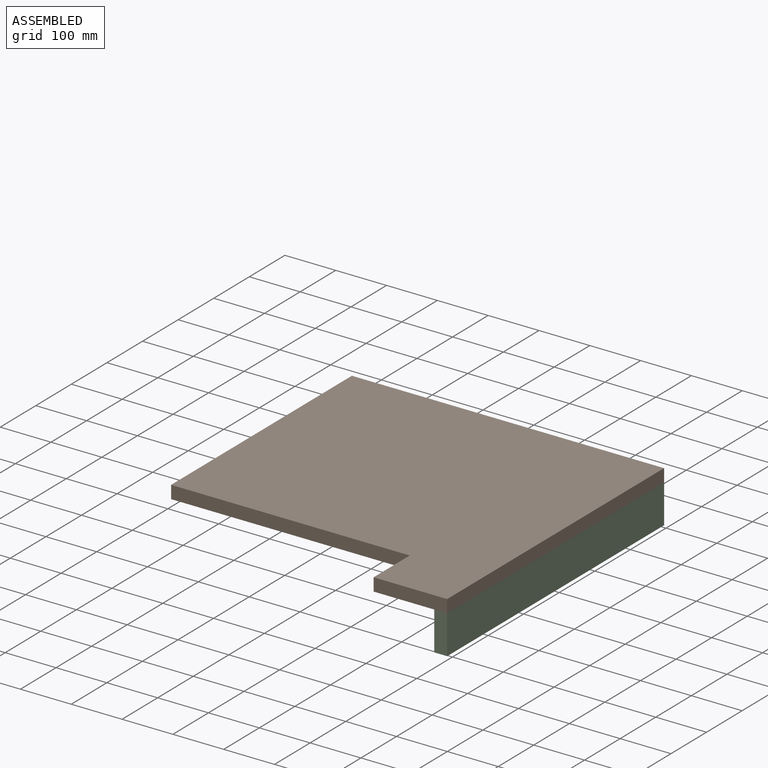
[diagram: assembled view]
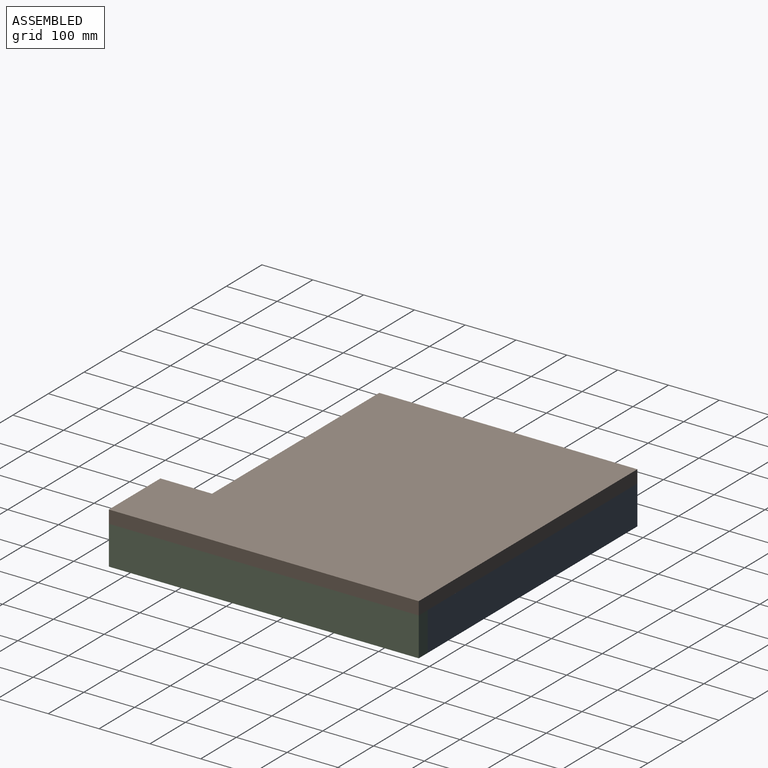
[diagram: assembled view, second angle]
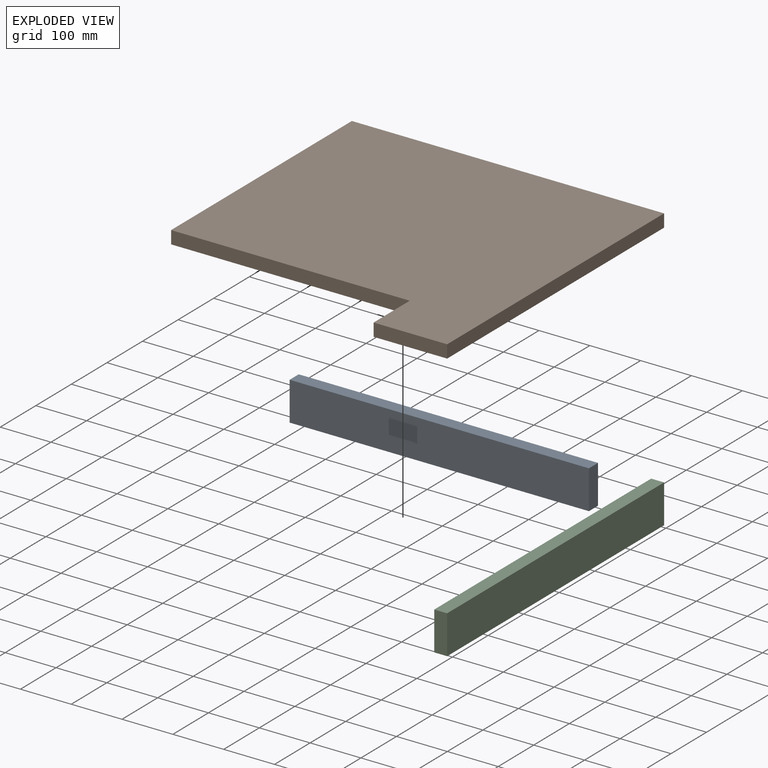
[diagram: exploded view]
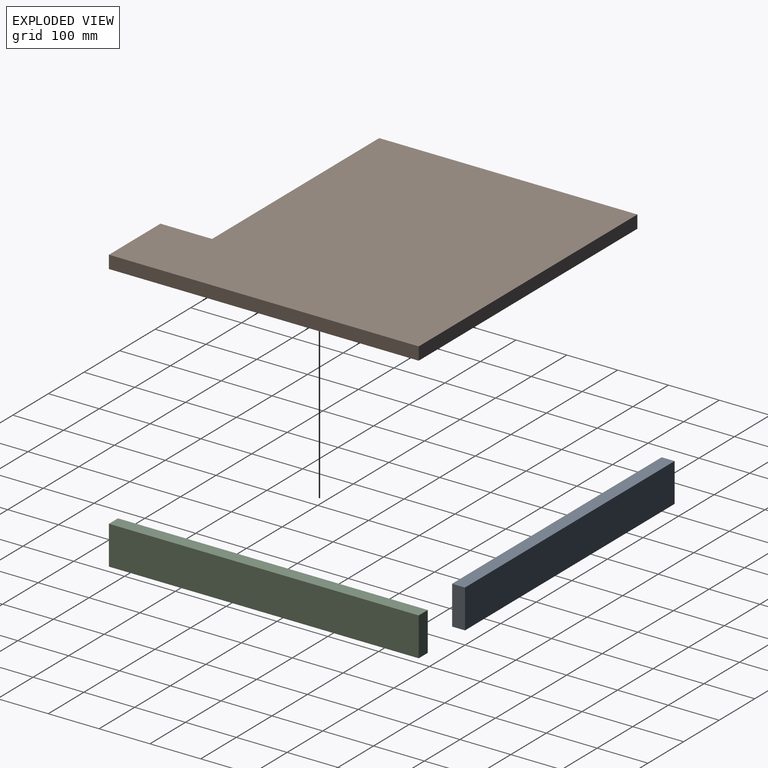
[diagram: exploded view, second angle]
ASSEMBLY  parts=3 mates=3
PART A: 6 faces, bbox 588.9x25.4x76.2 mm
  f0: plane 76.2x25.4mm, normal (-1,0,0), area 1935.5mm2, adj f1,f3,f4,f5
  f1: plane 588.95x25.4mm, normal (0,0,-1), area 14959.3mm2, adj f0,f2,f4,f5
  f2: plane 76.2x25.4mm, normal (1,0,0), area 1935.5mm2, adj f1,f3,f4,f5
  f3: plane 588.95x25.4mm, normal (0,0,1), area 14959.3mm2, adj f0,f2,f4,f5
  f4: plane 588.95x76.2mm, normal (0,-1,0), area 44878mm2, adj f0,f1,f2,f3
  f5: plane 588.95x76.2mm, normal (0,1,0), area 44878mm2, adj f0,f1,f2,f3
PART B: 8 faces, bbox 614.4x609.6x25.4 mm
  f0: plane 614.35x25.4mm, normal (0,1,0), area 15604.5mm2, adj f1,f5,f6,f7
  f1: plane 508x25.4mm, normal (-1,0,0), area 12903.2mm2, adj f0,f2,f6,f7
  f2: plane 469.61x25.4mm, normal (0,-1,0), area 11928.1mm2, adj f1,f3,f6,f7
  f3: plane 101.6x25.4mm, normal (-1,0,0), area 2580.6mm2, adj f2,f4,f6,f7
  f4: plane 144.74x25.4mm, normal (0,-1,0), area 3676.4mm2, adj f3,f5,f6,f7
  f5: plane 609.6x25.4mm, normal (1,0,0), area 15483.8mm2, adj f0,f4,f6,f7
  f6: plane 614.35x609.6mm, normal (0,0,1), area 326795.3mm2, adj f0,f1,f2,f3,f4,f5
  f7: plane 614.35x609.6mm, normal (0,0,-1), area 326795.3mm2, adj f0,f1,f2,f3,f4,f5
PART C: 6 faces, bbox 25.4x609.6x76.2 mm
  f0: plane 609.6x25.4mm, normal (0,0,-1), area 15483.8mm2, adj f1,f3,f4,f5
  f1: plane 76.2x25.4mm, normal (0,1,0), area 1935.5mm2, adj f0,f2,f4,f5
  f2: plane 609.6x25.4mm, normal (0,0,1), area 15483.8mm2, adj f1,f3,f4,f5
  f3: plane 76.2x25.4mm, normal (0,-1,0), area 1935.5mm2, adj f0,f2,f4,f5
  f4: plane 609.6x76.2mm, normal (1,0,0), area 46451.5mm2, adj f0,f1,f2,f3
  f5: plane 609.6x76.2mm, normal (-1,0,0), area 46451.5mm2, adj f0,f1,f2,f3
PLACE A t=(-412.43,84.14,13.48)mm
PLACE B t=(-412.43,84.14,13.48)mm
PLACE C t=(-412.43,84.14,13.48)mm
MATE fastened A.f3 <-> B.f7  axis (0,0,1) through (-412.43,84.14,51.58)mm
MATE fastened A.f2 <-> C.f5  axis (1,0,0) through (-117.95,84.14,13.48)mm
MATE fastened C.f2 <-> B.f7  axis (0,0,1) through (-92.55,-220.66,51.58)mm
